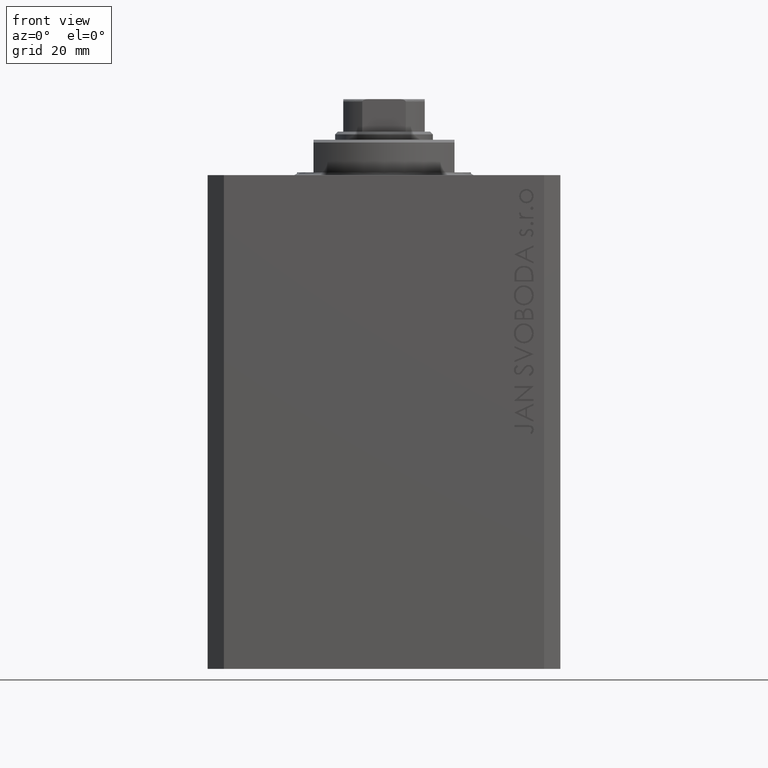
[diagram: clean part render]
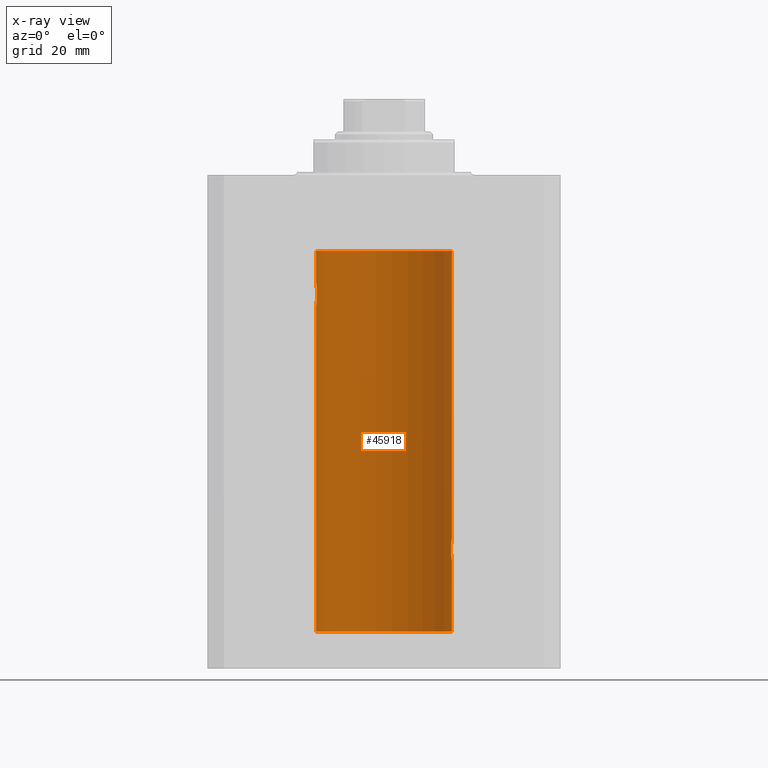
[diagram: x-ray — body ghosted, one internal face saturated and labeled with its STEP entity id]
A machine part, front view, then the same camera in x-ray: the body is ghosted and one INTERNAL B-rep face — a face not visible from any outside direction — is saturated and labeled: STEP entity #45918.
In plain terms, the highlighted cylindrical surface (partial cylindrical patch) has radius 12.5 mm, axis along (0, 0, 1).
Its self-contained STEP definition (entity closure, byte-faithful):
#154 = VERTEX_POINT ( 'NONE', #13769 ) ;
#336 = CARTESIAN_POINT ( 'NONE',  ( -12.33895470450623044, 2.000049200055401766, -22.12992629360264729 ) ) ;
#561 = CARTESIAN_POINT ( 'NONE',  ( -12.34109209020652465, 1.986986967296539897, -22.26269462454597914 ) ) ;
#656 = CARTESIAN_POINT ( 'NONE',  ( 12.50000000000000000, -7.266276684081261841E-23, -67.00000000000000000 ) ) ;
#814 = VERTEX_POINT ( 'NONE', #30229 ) ;
#901 = CARTESIAN_POINT ( 'NONE',  ( 12.39867611624532806, 1.590019252152828910, -67.77984495929611342 ) ) ;
#1042 = CARTESIAN_POINT ( 'NONE',  ( -12.48983485452574982, 0.5201193324741355539, -23.93561774521849372 ) ) ;
#1586 = CARTESIAN_POINT ( 'NONE',  ( 12.49789833780794446, 0.2625555164371021766, -70.98698170822147802 ) ) ;
#1769 = CARTESIAN_POINT ( 'NONE',  ( -12.50000000000000000, 1.530808498934191521E-15, -84.09999999999999432 ) ) ;
#2112 = AXIS2_PLACEMENT_3D ( 'NONE', #13130, #16692, #30296 ) ;
#2545 = CARTESIAN_POINT ( 'NONE',  ( 12.37760587642916477, 1.747868572747719229, -70.00639653169001519 ) ) ;
#2785 = CARTESIAN_POINT ( 'NONE',  ( 12.46019522898365217, 1.002712894177336223, -70.73540896027600411 ) ) ;
#3021 = CARTESIAN_POINT ( 'NONE',  ( -12.48990118705761532, 0.5184196815546056047, -20.06395648222637007 ) ) ;
#3171 = CARTESIAN_POINT ( 'NONE',  ( -12.50000000000000000, 1.530808498934191521E-15, -84.09999999999999432 ) ) ;
#3260 = CARTESIAN_POINT ( 'NONE',  ( -12.34781876294798053, 1.947190906025043633, -21.47436412829509678 ) ) ;
#4230 = VERTEX_POINT ( 'NONE', #22857 ) ;
#4391 = CARTESIAN_POINT ( 'NONE',  ( 12.50000000000000000, 0.000000000000000000, -84.09999999999999432 ) ) ;
#4510 = CARTESIAN_POINT ( 'NONE',  ( 12.40916530024876430, 1.507117913375715990, -67.67865955049003901 ) ) ;
#5954 = AXIS2_PLACEMENT_3D ( 'NONE', #40106, #26483, #43920 ) ;
#5990 = EDGE_CURVE ( 'NONE', #31285, #35932, #18481, .T. ) ;
#6496 = EDGE_CURVE ( 'NONE', #40756, #27978, #33847, .T. ) ;
#6617 = CARTESIAN_POINT ( 'NONE',  ( -12.50000000000000000, 0.1323736289504353625, -20.00000000000000000 ) ) ;
#6857 = CARTESIAN_POINT ( 'NONE',  ( -12.39873273758732175, 1.598680238462371062, -20.77033506126851137 ) ) ;
#7395 = DIRECTION ( 'NONE',  ( 1.000000000000000000, 0.000000000000000000, 0.000000000000000000 ) ) ;
#7775 = CARTESIAN_POINT ( 'NONE',  ( -12.39864157855465088, 1.590288205413973532, -23.21980790594580313 ) ) ;
#8003 = CARTESIAN_POINT ( 'NONE',  ( -12.49788564268284041, 0.2633501011236127343, -23.98690384766255335 ) ) ;
#8345 = CARTESIAN_POINT ( 'NONE',  ( -12.50000000000000000, 1.530808498934191521E-15, -84.09999999999999432 ) ) ;
#8463 = ORIENTED_EDGE ( 'NONE', *, *, #46097, .F. ) ;
#8647 = B_SPLINE_CURVE_WITH_KNOTS ( 'NONE', 3,
 ( #39273, #6617, #10897, #3021, #21148, #39511, #39977, #35939, #21842, #6857, #21391, #3260, #25887, #336, #561, #40433, #14912, #22529, #44012, #7775, #33741, #26126, #40665, #33040, #37565, #29930, #1042, #8003, #33505, #26830 ),
 .UNSPECIFIED., .F., .F.,
 ( 4, 2, 2, 2, 2, 2, 2, 2, 2, 2, 2, 2, 2, 2, 4 ),
 ( 1.814683826656258666E-20, 0.0003914362731607577369, 0.0007828725463215154739, 0.001174308819482273265, 0.001565745092643030948, 0.002348617638964546530, 0.003131490185286061895, 0.003522926458446825216, 0.003914362731607588103, 0.004305799004768351423, 0.004697235277929114744, 0.005088671551089878065, 0.005480107824250641385, 0.005871544097411404706, 0.006262980370572168026 ),
 .UNSPECIFIED. ) ;
#8987 = CARTESIAN_POINT ( 'NONE',  ( 12.48390005916863110, 0.6457215011736527899, -70.89742771554267620 ) ) ;
#9381 = DIRECTION ( 'NONE',  ( -0.000000000000000000, -0.000000000000000000, 1.000000000000000000 ) ) ;
#9620 = CARTESIAN_POINT ( 'NONE',  ( 12.50000000000000000, 0.000000000000000000, -84.09999999999999432 ) ) ;
#9963 = CARTESIAN_POINT ( 'NONE',  ( 12.44079900692650931, 1.220007525301739282, -70.59017579083663918 ) ) ;
#10207 = CARTESIAN_POINT ( 'NONE',  ( 12.50000000000000000, -7.266276684081261841E-23, -67.00000000000000000 ) ) ;
#10897 = CARTESIAN_POINT ( 'NONE',  ( -12.49789934882883458, 0.2624928479599910047, -20.01301208516349917 ) ) ;
#11234 = EDGE_CURVE ( 'NONE', #154, #4230, #25450, .T. ) ;
#12093 = EDGE_LOOP ( 'NONE', ( #39576, #8463, #29051, #30620, #46950, #12854, #23501, #35918, #14771 ) ) ;
#12386 = CARTESIAN_POINT ( 'NONE',  ( 12.48395395845270528, 0.6446573166014707423, -67.10222124213517247 ) ) ;
#12580 = CARTESIAN_POINT ( 'NONE',  ( 12.48989642018887736, 0.5185418732824252919, -70.93601292187607044 ) ) ;
#12854 = ORIENTED_EDGE ( 'NONE', *, *, #5990, .T. ) ;
#12952 = CARTESIAN_POINT ( 'NONE',  ( 0.000000000000000000, 0.000000000000000000, -13.99999999999999822 ) ) ;
#13130 = CARTESIAN_POINT ( 'NONE',  ( 0.000000000000000000, 0.000000000000000000, -84.09999999999999432 ) ) ;
#13526 = CARTESIAN_POINT ( 'NONE',  ( 12.34779119491631683, 1.947363444907009633, -69.52502775168255766 ) ) ;
#13769 = CARTESIAN_POINT ( 'NONE',  ( 12.50000000000000000, 2.320363022323678888E-15, -71.00000000000001421 ) ) ;
#13774 = CARTESIAN_POINT ( 'NONE',  ( 12.39869754437268590, 1.598954131913722820, -70.22932152813011442 ) ) ;
#14771 = ORIENTED_EDGE ( 'NONE', *, *, #31291, .T. ) ;
#14912 = CARTESIAN_POINT ( 'NONE',  ( -12.35517291625592051, 1.897967064543089721, -22.64415233770293412 ) ) ;
#16329 = DIRECTION ( 'NONE',  ( -0.000000000000000000, -0.000000000000000000, 1.000000000000000000 ) ) ;
#16692 = DIRECTION ( 'NONE',  ( 0.000000000000000000, 0.000000000000000000, 1.000000000000000000 ) ) ;
#17589 = CARTESIAN_POINT ( 'NONE',  ( 12.33896267925302759, 2.000000000000248246, -69.26143174220787557 ) ) ;
#18481 = LINE ( 'NONE', #4391, #43456 ) ;
#18594 = CARTESIAN_POINT ( 'NONE',  ( 12.50000000000000000, 0.000000000000000000, -84.09999999999999432 ) ) ;
#18789 = CARTESIAN_POINT ( 'NONE',  ( -12.50000000000000000, 1.867773856434666690E-17, -20.00000000000000000 ) ) ;
#18811 = EDGE_CURVE ( 'NONE', #35932, #814, #40297, .T. ) ;
#19052 = CARTESIAN_POINT ( 'NONE',  ( 12.35520276972935427, 1.897773362058238877, -68.35528278634338051 ) ) ;
#19302 = CARTESIAN_POINT ( 'NONE',  ( 12.44079117518645639, 1.220047488436368122, -67.40989676335084368 ) ) ;
#19532 = CARTESIAN_POINT ( 'NONE',  ( 12.33896267925302581, 2.000000000000247358, -68.86934705949917657 ) ) ;
#19804 = VECTOR ( 'NONE', #25762, 1000.000000000000000 ) ;
#20093 = CARTESIAN_POINT ( 'NONE',  ( 12.50000000000000000, 0.000000000000000000, -13.99999999999999822 ) ) ;
#21148 = CARTESIAN_POINT ( 'NONE',  ( -12.48390768591463207, 0.6455696738844916016, -20.10252270298193977 ) ) ;
#21151 = CARTESIAN_POINT ( 'NONE',  ( 12.33896267925302759, 2.000000000000247802, -69.00000000000000000 ) ) ;
#21391 = CARTESIAN_POINT ( 'NONE',  ( -12.37764291807175354, 1.747608771958140794, -20.99316879552500481 ) ) ;
#21842 = CARTESIAN_POINT ( 'NONE',  ( -12.43019346654084956, 1.322451657002078340, -20.49398366327208620 ) ) ;
#22392 = CARTESIAN_POINT ( 'NONE',  ( 12.37925647381943506, 1.734744884174218571, -67.99620732598650363 ) ) ;
#22529 = CARTESIAN_POINT ( 'NONE',  ( -12.37018026341338839, 1.797558627508998086, -22.88656313533016373 ) ) ;
#22620 = CARTESIAN_POINT ( 'NONE',  ( 12.34110728646152388, 1.986893050944454453, -68.73661347764982565 ) ) ;
#22688 = EDGE_CURVE ( 'NONE', #4230, #31285, #25353, .T. ) ;
#22857 = CARTESIAN_POINT ( 'NONE',  ( 12.33896267925302759, 2.000000000000247802, -69.00000000000000000 ) ) ;
#23105 = CARTESIAN_POINT ( 'NONE',  ( 12.43037348241797524, 1.320834183883837554, -67.49243837704293014 ) ) ;
#23501 = ORIENTED_EDGE ( 'NONE', *, *, #18811, .T. ) ;
#23530 = CARTESIAN_POINT ( 'NONE',  ( 12.46901623405144122, 0.8878913781257877780, -70.79689651717549737 ) ) ;
#23590 = VERTEX_POINT ( 'NONE', #18594 ) ;
#25353 = B_SPLINE_CURVE_WITH_KNOTS ( 'NONE', 3,
 ( #36941, #19532, #22620, #33125, #19052, #44809, #22392, #901, #4510, #23105, #19302, #40989, #33355, #12386, #37652, #44344, #34064, #656 ),
 .UNSPECIFIED., .F., .F.,
 ( 4, 2, 2, 2, 2, 2, 2, 2, 4 ),
 ( 0.003132244164174466730, 0.003523586189974241625, 0.003914928215774016521, 0.004306270241573791416, 0.004697612267373566311, 0.005088954293173341206, 0.005480296318973116101, 0.005871638344772890997, 0.006262980370572665892 ),
 .UNSPECIFIED. ) ;
#25450 = B_SPLINE_CURVE_WITH_KNOTS ( 'NONE', 3,
 ( #45250, #34272, #1586, #12580, #8987, #23530, #2785, #9963, #32136, #13774, #2545, #13526, #17589, #21151 ),
 .UNSPECIFIED., .F., .F.,
 ( 4, 2, 2, 2, 2, 2, 4 ),
 ( 2.254408494944823136E-18, 0.0003915305205218102386, 0.0007830610410436180920, 0.001174591561565426108, 0.001566122082087234016, 0.002349183123130850048, 0.003132244164174466730 ),
 .UNSPECIFIED. ) ;
#25514 = DIRECTION ( 'NONE',  ( 0.000000000000000000, 0.000000000000000000, 1.000000000000000000 ) ) ;
#25739 = EDGE_CURVE ( 'NONE', #23590, #154, #45869, .T. ) ;
#25762 = DIRECTION ( 'NONE',  ( -0.000000000000000000, -0.000000000000000000, 1.000000000000000000 ) ) ;
#25869 = DIRECTION ( 'NONE',  ( -0.000000000000000000, -0.000000000000000000, 1.000000000000000000 ) ) ;
#25887 = CARTESIAN_POINT ( 'NONE',  ( -12.33897869807161385, 1.999901172190678089, -21.73788193668374547 ) ) ;
#26126 = CARTESIAN_POINT ( 'NONE',  ( -12.43034574091277911, 1.321095788880539024, -23.50733550364322255 ) ) ;
#26483 = DIRECTION ( 'NONE',  ( -0.000000000000000000, -0.000000000000000000, 1.000000000000000000 ) ) ;
#26830 = CARTESIAN_POINT ( 'NONE',  ( -12.50000000000000000, 1.530808426276628993E-15, -23.99999999999999645 ) ) ;
#27778 = LINE ( 'NONE', #1769, #46115 ) ;
#27978 = VERTEX_POINT ( 'NONE', #39222 ) ;
#29051 = ORIENTED_EDGE ( 'NONE', *, *, #25739, .T. ) ;
#29930 = CARTESIAN_POINT ( 'NONE',  ( -12.48394649977302073, 0.6448065707253024526, -23.89773031393659153 ) ) ;
#30229 = CARTESIAN_POINT ( 'NONE',  ( -12.50000000000000000, 1.530808498934191521E-15, -13.99999999999999822 ) ) ;
#30296 = DIRECTION ( 'NONE',  ( 1.000000000000000000, 0.000000000000000000, 0.000000000000000000 ) ) ;
#30620 = ORIENTED_EDGE ( 'NONE', *, *, #11234, .T. ) ;
#31285 = VERTEX_POINT ( 'NONE', #10207 ) ;
#31291 = EDGE_CURVE ( 'NONE', #31795, #27978, #8647, .T. ) ;
#31795 = VERTEX_POINT ( 'NONE', #18789 ) ;
#32136 = CARTESIAN_POINT ( 'NONE',  ( 12.43016561391612917, 1.322713721413880661, -70.50578877836699121 ) ) ;
#33040 = CARTESIAN_POINT ( 'NONE',  ( -12.46009879577771606, 1.003863686549169465, -23.73470742397611843 ) ) ;
#33125 = CARTESIAN_POINT ( 'NONE',  ( 12.34924836377099844, 1.935649219704934865, -68.48002062127163470 ) ) ;
#33165 = CYLINDRICAL_SURFACE ( 'NONE', #5954, 12.50000000000000000 ) ;
#33355 = CARTESIAN_POINT ( 'NONE',  ( 12.46910683544638232, 0.8866026273585037032, -67.20247863689694157 ) ) ;
#33505 = CARTESIAN_POINT ( 'NONE',  ( -12.50000000000000533, 0.1306394121199390135, -24.00000000000000711 ) ) ;
#33741 = CARTESIAN_POINT ( 'NONE',  ( -12.40913174964213184, 1.507394620545641439, -23.32102833500698225 ) ) ;
#33847 = LINE ( 'NONE', #8345, #19804 ) ;
#34064 = CARTESIAN_POINT ( 'NONE',  ( 12.49999999999999822, 0.1306079576516667173, -66.99999999999998579 ) ) ;
#34272 = CARTESIAN_POINT ( 'NONE',  ( 12.50000000000000178, 0.1324055009716466613, -71.00000000000001421 ) ) ;
#35634 = CIRCLE ( 'NONE', #2112, 12.50000000000000000 ) ;
#35918 = ORIENTED_EDGE ( 'NONE', *, *, #38829, .F. ) ;
#35932 = VERTEX_POINT ( 'NONE', #20093 ) ;
#35939 = CARTESIAN_POINT ( 'NONE',  ( -12.44082361696003503, 1.219754986802281449, -20.40963319990594016 ) ) ;
#36941 = CARTESIAN_POINT ( 'NONE',  ( 12.33896267925302759, 2.000000000000247802, -69.00000000000000000 ) ) ;
#37264 = AXIS2_PLACEMENT_3D ( 'NONE', #12952, #25514, #7395 ) ;
#37565 = CARTESIAN_POINT ( 'NONE',  ( -12.46909283808506430, 0.8868029758979402155, -23.79742491916155345 ) ) ;
#37652 = CARTESIAN_POINT ( 'NONE',  ( 12.48983962833819028, 0.5199974825204898288, -67.06435160808018736 ) ) ;
#38829 = EDGE_CURVE ( 'NONE', #31795, #814, #27778, .T. ) ;
#39222 = CARTESIAN_POINT ( 'NONE',  ( -12.50000000000000000, 1.530808426276628993E-15, -23.99999999999999645 ) ) ;
#39273 = CARTESIAN_POINT ( 'NONE',  ( -12.50000000000000000, 1.867773856434666690E-17, -20.00000000000000000 ) ) ;
#39511 = CARTESIAN_POINT ( 'NONE',  ( -12.46903010196599304, 0.8876934327478135378, -20.20300788371381984 ) ) ;
#39576 = ORIENTED_EDGE ( 'NONE', *, *, #6496, .F. ) ;
#39977 = CARTESIAN_POINT ( 'NONE',  ( -12.46021263690096958, 1.002494658017156981, -20.26446744561863156 ) ) ;
#40106 = CARTESIAN_POINT ( 'NONE',  ( 0.000000000000000000, 0.000000000000000000, -84.09999999999999432 ) ) ;
#40297 = CIRCLE ( 'NONE', #37264, 12.50000000000000000 ) ;
#40433 = CARTESIAN_POINT ( 'NONE',  ( -12.34922241902463114, 1.935814255713574239, -22.51937350851555308 ) ) ;
#40665 = CARTESIAN_POINT ( 'NONE',  ( -12.44076681548080288, 1.220297236145718944, -23.58991408680628155 ) ) ;
#40756 = VERTEX_POINT ( 'NONE', #3171 ) ;
#40989 = CARTESIAN_POINT ( 'NONE',  ( 12.46011632531798874, 1.003644408234883434, -67.26516799687672687 ) ) ;
#41284 = VECTOR ( 'NONE', #9381, 1000.000000000000000 ) ;
#43456 = VECTOR ( 'NONE', #25869, 1000.000000000000000 ) ;
#43920 = DIRECTION ( 'NONE',  ( 1.000000000000000000, 0.000000000000000000, 0.000000000000000000 ) ) ;
#44012 = CARTESIAN_POINT ( 'NONE',  ( -12.37922086519035325, 1.734998657226764829, -23.00335814299181436 ) ) ;
#44344 = CARTESIAN_POINT ( 'NONE',  ( 12.49788668346399945, 0.2632864803365707607, -67.01308975838333026 ) ) ;
#44611 = FACE_OUTER_BOUND ( 'NONE', #12093, .T. ) ;
#44809 = CARTESIAN_POINT ( 'NONE',  ( 12.37021546997940291, 1.797317011867403114, -68.11295119741079418 ) ) ;
#45250 = CARTESIAN_POINT ( 'NONE',  ( 12.50000000000000000, 2.320363022323678888E-15, -71.00000000000001421 ) ) ;
#45869 = LINE ( 'NONE', #9620, #41284 ) ;
#45918 = ADVANCED_FACE ( 'NONE', ( #44611 ), #33165, .F. ) ;
#46097 = EDGE_CURVE ( 'NONE', #23590, #40756, #35634, .T. ) ;
#46115 = VECTOR ( 'NONE', #16329, 1000.000000000000000 ) ;
#46950 = ORIENTED_EDGE ( 'NONE', *, *, #22688, .T. ) ;